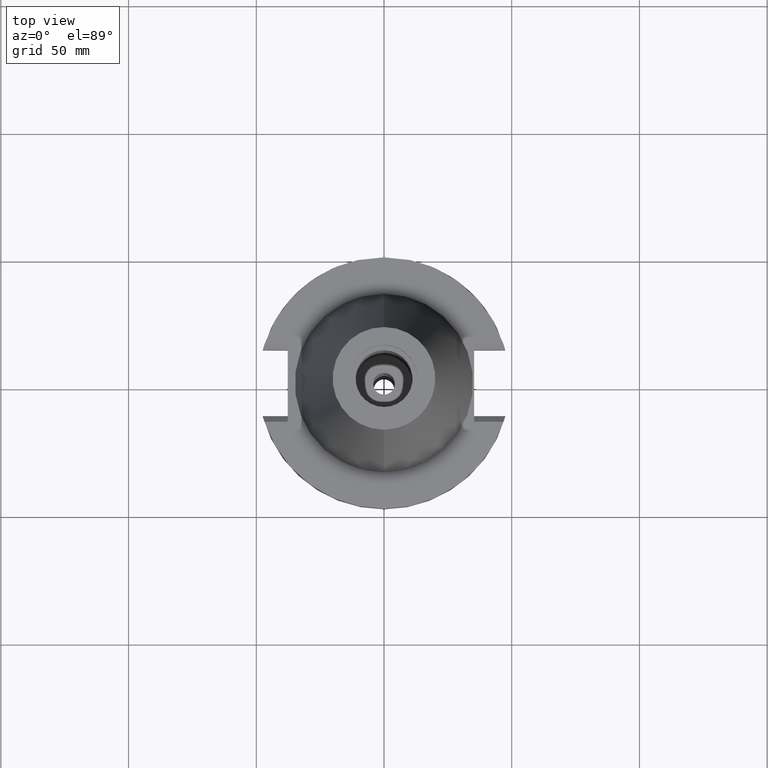
[diagram: clean part render]
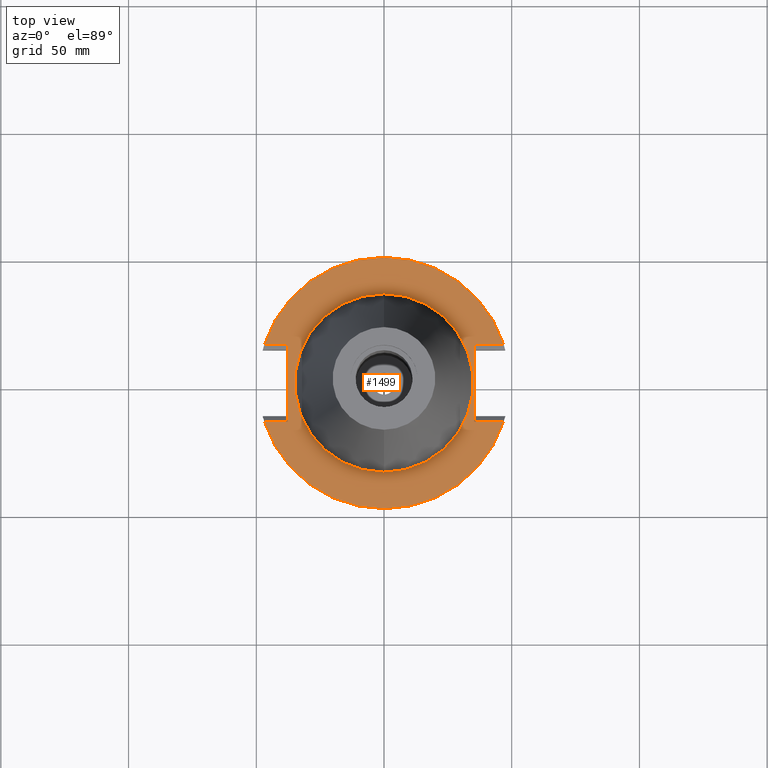
[diagram: same view with one face highlighted and labeled with its STEP entity id]
A machine part, top view. The second image highlights one B-rep face of the part: STEP entity #1499.
In plain terms, the highlighted planar face has unit normal (0, 0, -1).
Its self-contained STEP definition (entity closure, byte-faithful):
#94=DIRECTION('',(0.E0,-1.E0,0.E0));
#95=VECTOR('',#94,3.031E1);
#96=CARTESIAN_POINT('',(3.527E1,1.5155E1,-1.5E0));
#97=LINE('',#96,#95);
#101=DIRECTION('',(1.E0,0.E0,0.E0));
#102=VECTOR('',#101,1.155089417397E1);
#103=CARTESIAN_POINT('',(3.527E1,-1.5155E1,-1.5E0));
#104=LINE('',#103,#102);
#108=CARTESIAN_POINT('',(0.E0,1.398301715266E-14,-1.5E0));
#109=DIRECTION('',(0.E0,0.E0,-1.E0));
#110=DIRECTION('',(9.514024724200E-1,-3.079502159004E-1,0.E0));
#111=AXIS2_PLACEMENT_3D('',#108,#109,#110);
#116=CARTESIAN_POINT('',(0.E0,1.398301715266E-14,-1.5E0));
#117=DIRECTION('',(0.E0,0.E0,-1.E0));
#118=DIRECTION('',(0.E0,-1.E0,0.E0));
#119=AXIS2_PLACEMENT_3D('',#116,#117,#118);
#124=DIRECTION('',(0.E0,1.E0,0.E0));
#125=VECTOR('',#124,3.031E1);
#126=CARTESIAN_POINT('',(-3.768E1,-1.5155E1,-1.5E0));
#127=LINE('',#126,#125);
#131=DIRECTION('',(-1.E0,-1.263149888441E-14,0.E0));
#132=VECTOR('',#131,9.140894173969E0);
#133=CARTESIAN_POINT('',(-3.768E1,1.5155E1,-1.5E0));
#134=LINE('',#133,#132);
#138=CARTESIAN_POINT('',(0.E0,1.398301715266E-14,-1.5E0));
#139=DIRECTION('',(0.E0,0.E0,-1.E0));
#140=DIRECTION('',(-9.514024724200E-1,3.079502159004E-1,0.E0));
#141=AXIS2_PLACEMENT_3D('',#138,#139,#140);
#146=CARTESIAN_POINT('',(0.E0,1.398301715266E-14,-1.5E0));
#147=DIRECTION('',(0.E0,0.E0,-1.E0));
#148=DIRECTION('',(0.E0,1.E0,0.E0));
#149=AXIS2_PLACEMENT_3D('',#146,#147,#148);
#154=CARTESIAN_POINT('',(0.E0,1.398301715266E-14,-1.5E0));
#155=DIRECTION('',(0.E0,0.E0,1.E0));
#156=DIRECTION('',(0.E0,-1.E0,0.E0));
#157=AXIS2_PLACEMENT_3D('',#154,#155,#156);
#162=CARTESIAN_POINT('',(0.E0,1.398301715266E-14,-1.5E0));
#163=DIRECTION('',(0.E0,0.E0,1.E0));
#164=DIRECTION('',(0.E0,1.E0,0.E0));
#165=AXIS2_PLACEMENT_3D('',#162,#163,#164);
#281=DIRECTION('',(1.E0,0.E0,0.E0));
#282=VECTOR('',#281,1.155089417397E1);
#283=CARTESIAN_POINT('',(3.527E1,1.5155E1,-1.5E0));
#284=LINE('',#283,#282);
#298=CARTESIAN_POINT('',(4.682089417397E1,1.5155E1,-1.5E0));
#561=DIRECTION('',(-1.E0,1.263149888441E-14,0.E0));
#562=VECTOR('',#561,9.140894173969E0);
#563=CARTESIAN_POINT('',(-3.768E1,-1.5155E1,-1.5E0));
#564=LINE('',#563,#562);
#575=CARTESIAN_POINT('',(4.682089417397E1,-1.5155E1,-1.5E0));
#600=CARTESIAN_POINT('',(-4.682089417397E1,-1.5155E1,-1.5E0));
#1282=CARTESIAN_POINT('',(3.527E1,-1.5155E1,-1.5E0));
#1283=VERTEX_POINT('',#1282);
#1284=CARTESIAN_POINT('',(3.527E1,1.5155E1,-1.5E0));
#1285=VERTEX_POINT('',#1284);
#1325=CARTESIAN_POINT('',(-3.768E1,1.5155E1,-1.5E0));
#1326=VERTEX_POINT('',#1325);
#1327=CARTESIAN_POINT('',(-3.768E1,-1.5155E1,-1.5E0));
#1328=VERTEX_POINT('',#1327);
#1371=VERTEX_POINT('',#575);
#1372=VERTEX_POINT('',#600);
#1373=CARTESIAN_POINT('',(-6.280856145559E-14,-4.92125E1,-1.5E0));
#1374=VERTEX_POINT('',#1373);
#1377=VERTEX_POINT('',#298);
#1378=CARTESIAN_POINT('',(0.E0,4.92125E1,-1.5E0));
#1379=VERTEX_POINT('',#1378);
#1380=CARTESIAN_POINT('',(-4.682089417397E1,1.5155E1,-1.5E0));
#1381=VERTEX_POINT('',#1380);
#1382=CARTESIAN_POINT('',(0.E0,-3.4925E1,-1.5E0));
#1383=CARTESIAN_POINT('',(0.E0,3.4925E1,-1.5E0));
#1384=VERTEX_POINT('',#1382);
#1385=VERTEX_POINT('',#1383);
#1468=CARTESIAN_POINT('',(0.E0,0.E0,-1.5E0));
#1469=DIRECTION('',(0.E0,0.E0,-1.E0));
#1470=DIRECTION('',(0.E0,-1.E0,0.E0));
#1471=AXIS2_PLACEMENT_3D('',#1468,#1469,#1470);
#1472=PLANE('',#1471);
#1474=ORIENTED_EDGE('',*,*,#1473,.T.);
#1476=ORIENTED_EDGE('',*,*,#1475,.T.);
#1478=ORIENTED_EDGE('',*,*,#1477,.T.);
#1480=ORIENTED_EDGE('',*,*,#1479,.T.);
#1482=ORIENTED_EDGE('',*,*,#1481,.F.);
#1484=ORIENTED_EDGE('',*,*,#1483,.T.);
#1486=ORIENTED_EDGE('',*,*,#1485,.T.);
#1488=ORIENTED_EDGE('',*,*,#1487,.T.);
#1490=ORIENTED_EDGE('',*,*,#1489,.T.);
#1492=ORIENTED_EDGE('',*,*,#1491,.F.);
#1493=EDGE_LOOP('',(#1474,#1476,#1478,#1480,#1482,#1484,#1486,#1488,#1490,
#1492));
#1494=FACE_OUTER_BOUND('',#1493,.F.);
#1495=ORIENTED_EDGE('',*,*,#1447,.T.);
#1496=ORIENTED_EDGE('',*,*,#1463,.T.);
#1497=EDGE_LOOP('',(#1495,#1496));
#1498=FACE_BOUND('',#1497,.F.);
#112=CIRCLE('',#111,4.92125E1);
#120=CIRCLE('',#119,4.92125E1);
#142=CIRCLE('',#141,4.92125E1);
#150=CIRCLE('',#149,4.92125E1);
#158=CIRCLE('',#157,3.4925E1);
#166=CIRCLE('',#165,3.4925E1);
#1447=EDGE_CURVE('',#1384,#1385,#158,.T.);
#1463=EDGE_CURVE('',#1385,#1384,#166,.T.);
#1473=EDGE_CURVE('',#1285,#1283,#97,.T.);
#1475=EDGE_CURVE('',#1283,#1371,#104,.T.);
#1477=EDGE_CURVE('',#1371,#1374,#112,.T.);
#1479=EDGE_CURVE('',#1374,#1372,#120,.T.);
#1481=EDGE_CURVE('',#1328,#1372,#564,.T.);
#1483=EDGE_CURVE('',#1328,#1326,#127,.T.);
#1485=EDGE_CURVE('',#1326,#1381,#134,.T.);
#1487=EDGE_CURVE('',#1381,#1379,#142,.T.);
#1489=EDGE_CURVE('',#1379,#1377,#150,.T.);
#1491=EDGE_CURVE('',#1285,#1377,#284,.T.);
#1499=ADVANCED_FACE('',(#1494,#1498),#1472,.F.);